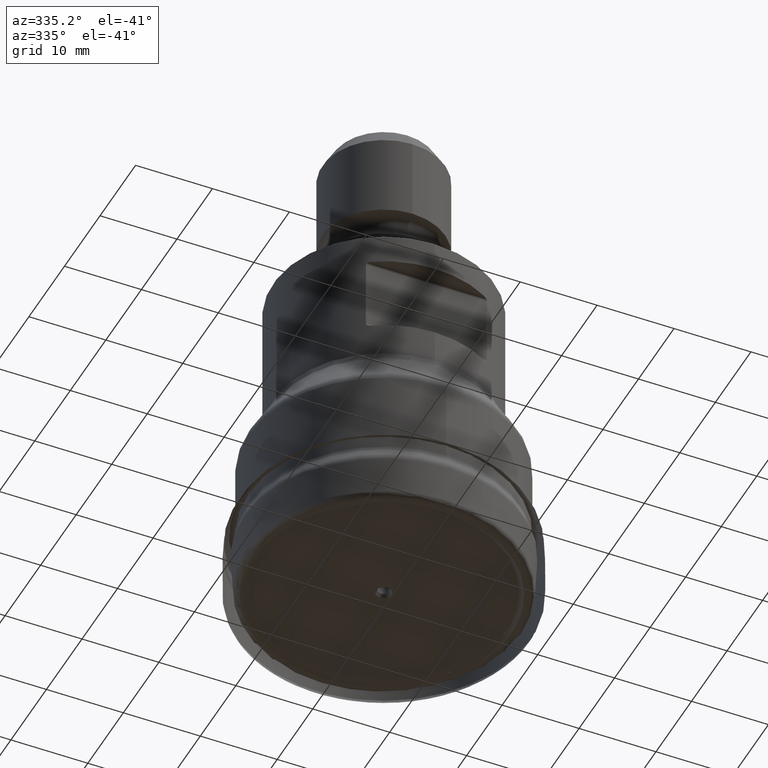
[diagram: clean part render]
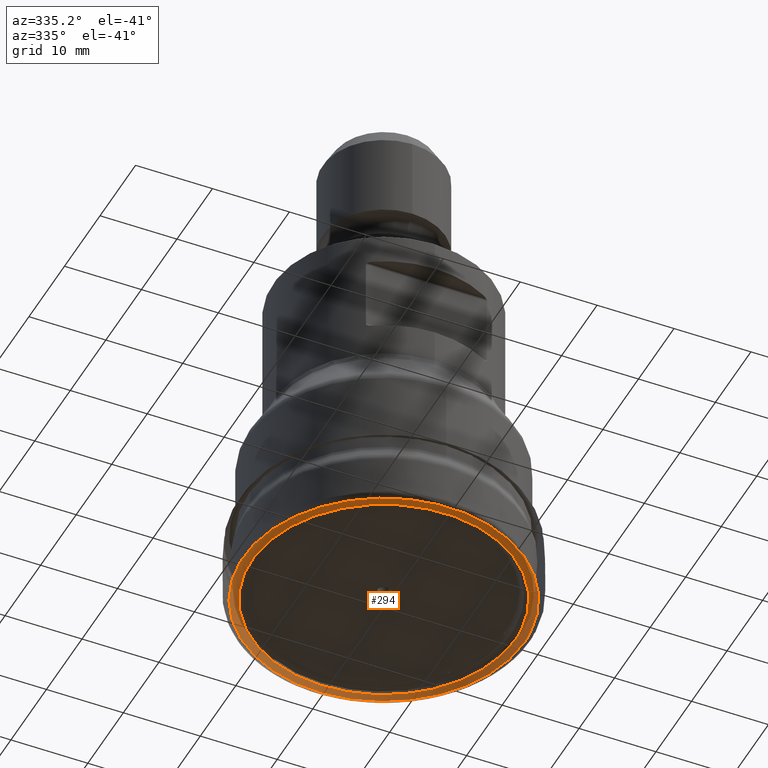
[diagram: same view with one face highlighted and labeled with its STEP entity id]
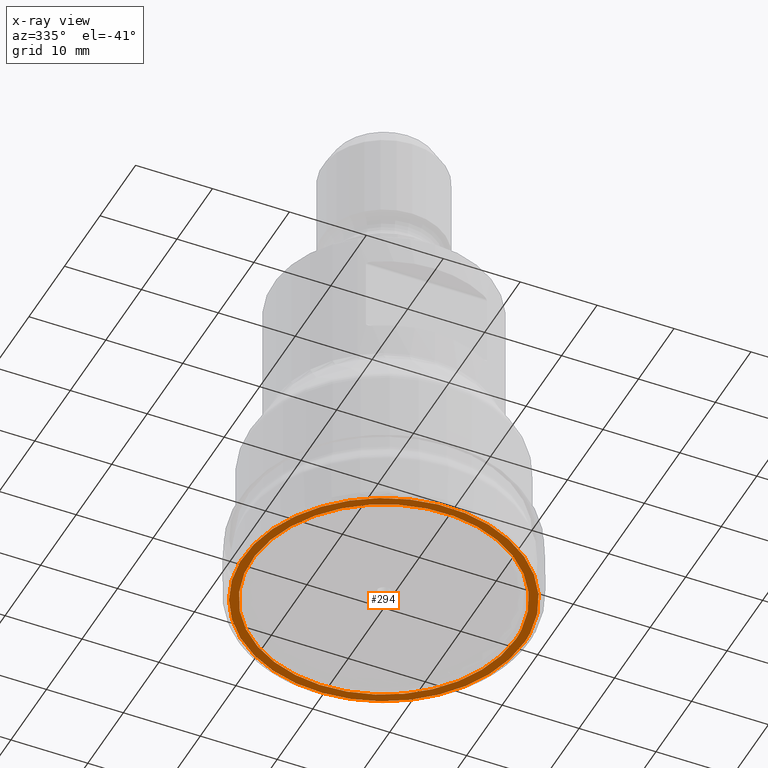
[diagram: x-ray of the same camera — body ghosted, the highlighted face saturated]
A machine part, auxiliary view. The second image highlights one B-rep face of the part: STEP entity #294.
The next image is the same camera in x-ray: the body ghosted, the highlighted face saturated — about 0% of this face is hidden behind the body in this view.
In plain terms, the highlighted face is a SurfaceOfRevolution surface.
Its self-contained STEP definition (entity closure, byte-faithful):
#128=SURFACE_OF_REVOLUTION('',#193,#152);
#152=AXIS1_PLACEMENT('',#2002,#1303);
#193=LINE('',#2001,#208);
#208=VECTOR('',#1302,1.17035110699642);
#294=ADVANCED_FACE('',(#414,#415),#128,.F.);
#414=FACE_BOUND('',#536,.T.);
#415=FACE_BOUND('',#537,.T.);
#536=EDGE_LOOP('',(#694));
#537=EDGE_LOOP('',(#695));
#694=ORIENTED_EDGE('',*,*,#850,.T.);
#695=ORIENTED_EDGE('',*,*,#851,.F.);
#771=VERTEX_POINT('',#1987);
#772=VERTEX_POINT('',#2000);
#850=EDGE_CURVE('',#771,#771,#909,.T.);
#851=EDGE_CURVE('',#772,#772,#910,.T.);
#909=CIRCLE('',#1064,18.2839641957362);
#910=CIRCLE('',#1065,17.1261752599199);
#1064=AXIS2_PLACEMENT_3D('',#1986,#1297,#1298);
#1065=AXIS2_PLACEMENT_3D('',#1999,#1300,#1301);
#1297=DIRECTION('',(0.,0.,1.));
#1298=DIRECTION('',(1.,0.,0.));
#1300=DIRECTION('',(0.,0.,1.));
#1301=DIRECTION('',(1.,0.,0.));
#1302=DIRECTION('',(0.999723117667967,-0.00259117503930855,-0.0233874712646786));
#1303=DIRECTION('',(0.,0.,1.));
#1986=CARTESIAN_POINT('',(0.,0.,-9.8869312860549E-12));
#1987=CARTESIAN_POINT('',(18.2839641957362,0.,-9.8869312860549E-12));
#1999=CARTESIAN_POINT('',(0.,0.,0.0273716250834316));
#2000=CARTESIAN_POINT('',(17.1261752599199,0.,0.0273716250834316));
#2001=CARTESIAN_POINT('',(16.9281316753926,-2.5969668873634,0.0273716250834316));
#2002=CARTESIAN_POINT('',(0.,0.,0.));